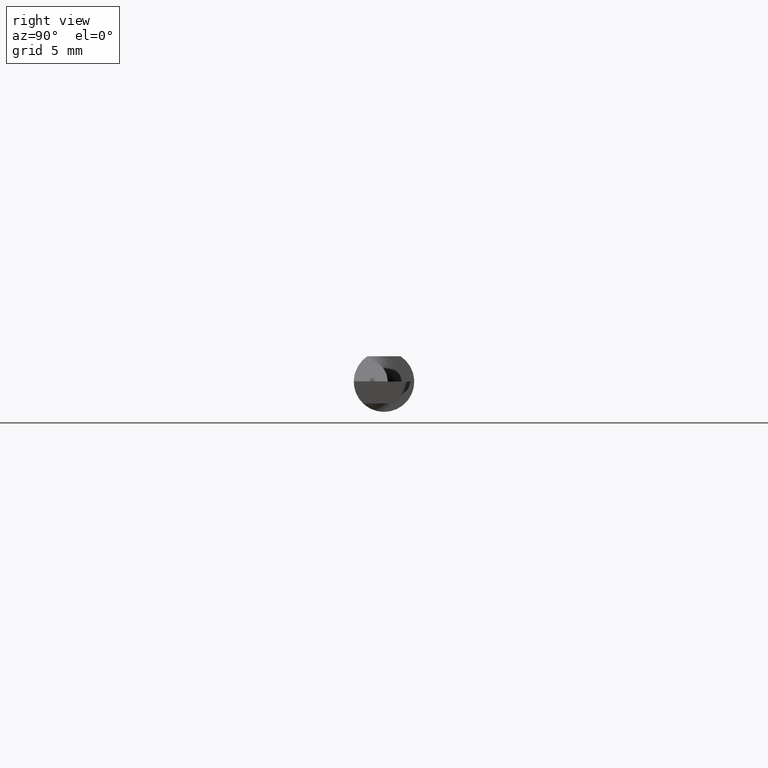
[diagram: clean part render]
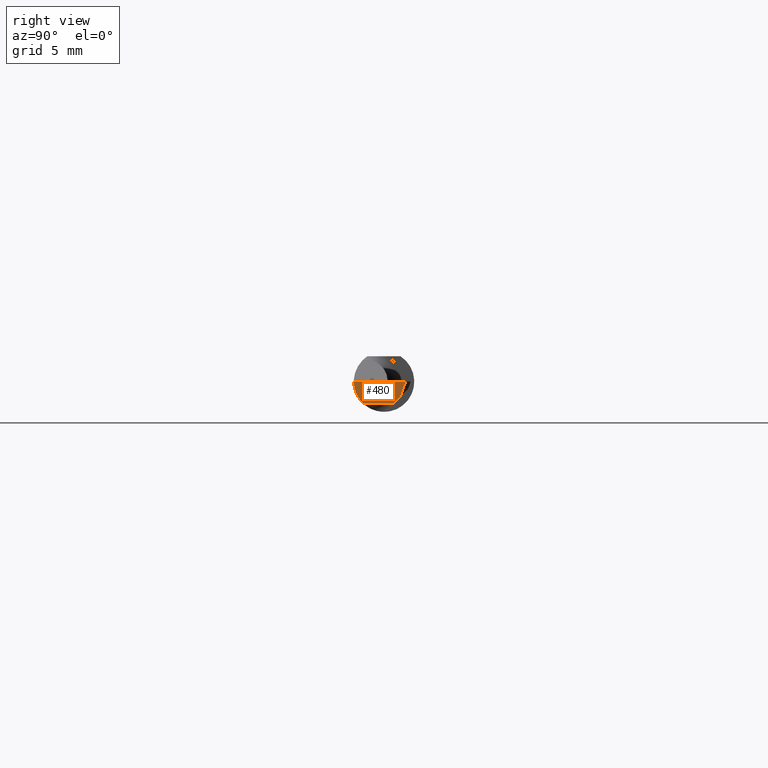
[diagram: same view with one face highlighted and labeled with its STEP entity id]
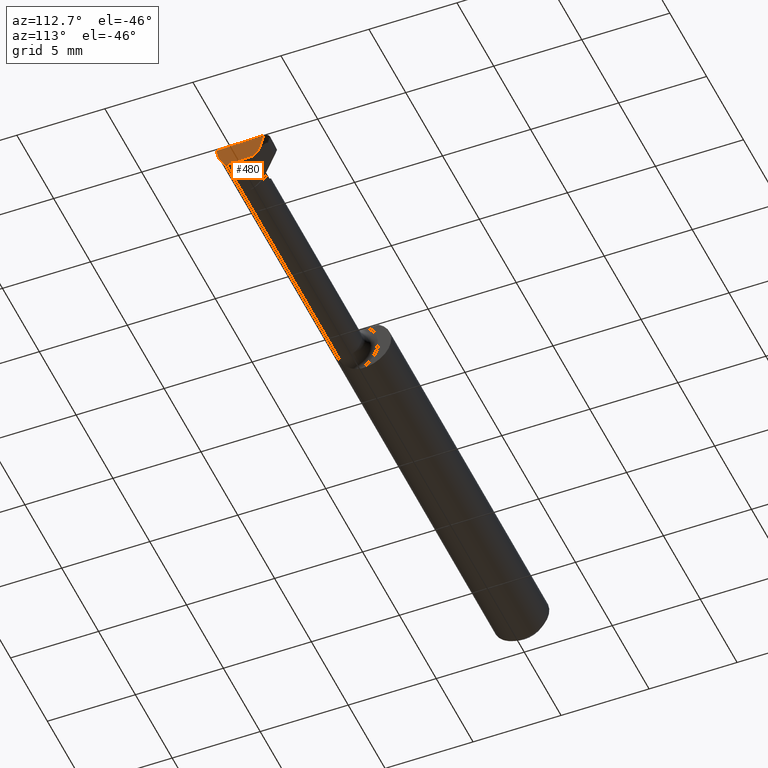
[diagram: same view with one face highlighted and labeled with its STEP entity id]
A machine part, right view. The second image highlights one B-rep face of the part: STEP entity #480.
A second angle (auxiliary view) of the same face is appended — the face is thin or edge-on in the first view.
In plain terms, the highlighted planar face has unit normal (-0.9919, 0.0349, 0.1218).
Its self-contained STEP definition (entity closure, byte-faithful):
#21 = EDGE_LOOP ( 'NONE', ( #639, #83, #530, #56, #252, #608 ) ) ;
#24 = DIRECTION ( 'NONE',  ( 0.1263519090027680480, 0.3433542545449559946, 0.9306680670234870334 ) ) ;
#28 = DIRECTION ( 'NONE',  ( -0.1108231566318821637, -0.7048963575661799652, -0.7005992813613767245 ) ) ;
#41 = CARTESIAN_POINT ( 'NONE',  ( 1.493725782297394389, -0.06234999999999974590, -0.01700082242080195108 ) ) ;
#49 = PLANE ( 'NONE',  #433 ) ;
#52 = CARTESIAN_POINT ( 'NONE',  ( 1.470179879611684282, 0.05664999999999999203, -0.2428653909663854860 ) ) ;
#56 = ORIENTED_EDGE ( 'NONE', *, *, #873, .F. ) ;
#70 = EDGE_CURVE ( 'NONE', #442, #138, #269, .T. ) ;
#72 = CARTESIAN_POINT ( 'NONE',  ( 1.491000998396268429, -0.04360836680053547382, -0.04456268444550840618 ) ) ;
#78 = CARTESIAN_POINT ( 'NONE',  ( 1.491093796476024469, -0.03944460584838484218, -0.04499999999999999833 ) ) ;
#83 = ORIENTED_EDGE ( 'NONE', *, *, #147, .T. ) ;
#85 = EDGE_CURVE ( 'NONE', #293, #326, #486, .T. ) ;
#93 = CARTESIAN_POINT ( 'NONE',  ( 1.495219055447697620, 0.03288246833425534366, -0.03212725622798096037 ) ) ;
#109 = CARTESIAN_POINT ( 'NONE',  ( 1.495813220813313693, -0.06235000000000000264, -2.641722387191573529E-17 ) ) ;
#113 = VERTEX_POINT ( 'NONE', #93 ) ;
#138 = VERTEX_POINT ( 'NONE', #443 ) ;
#147 = EDGE_CURVE ( 'NONE', #113, #326, #652, .T. ) ;
#157 = EDGE_CURVE ( 'NONE', #113, #514, #169, .T. ) ;
#169 = LINE ( 'NONE', #501, #421 ) ;
#178 = CARTESIAN_POINT ( 'NONE',  ( 1.495813220813313693, -0.06235000000000000264, -2.641722387191573529E-17 ) ) ;
#199 = CARTESIAN_POINT ( 'NONE',  ( 1.491000998396268429, -0.04360836680053547382, -0.04456268444550840618 ) ) ;
#222 = CARTESIAN_POINT ( 'NONE',  ( 1.471069375019570913, -0.03274293919889822990, -0.2100061389505829268 ) ) ;
#251 = EDGE_CURVE ( 'NONE', #138, #514, #875, .T. ) ;
#252 = ORIENTED_EDGE ( 'NONE', *, *, #70, .T. ) ;
#269 =( BOUNDED_CURVE ( )  B_SPLINE_CURVE ( 3, ( #72, #904, #78, #286 ),
 .UNSPECIFIED., .F., .T. ) 
 B_SPLINE_CURVE_WITH_KNOTS ( ( 4, 4 ),
 ( 0.1395382827391957181, 0.2790653745353861570 ),
 .UNSPECIFIED. ) 
 CURVE ( )  GEOMETRIC_REPRESENTATION_ITEM ( )  RATIONAL_B_SPLINE_CURVE ( ( 1.000000000000000000, 0.9983783404263124606, 0.9983783404263124606, 1.000000000000000000 ) ) 
 REPRESENTATION_ITEM ( '' )  );
#286 = CARTESIAN_POINT ( 'NONE',  ( 1.491167491032077352, -0.03735000000000000125, -0.04499999999999999833 ) ) ;
#293 = VERTEX_POINT ( 'NONE', #178 ) ;
#326 = VERTEX_POINT ( 'NONE', #832 ) ;
#328 = DIRECTION ( 'NONE',  ( 0.1218693434051339730, 0.000000000000000000, 0.9925461516413236485 ) ) ;
#421 = VECTOR ( 'NONE', #28, 39.37007874015748143 ) ;
#422 = CARTESIAN_POINT ( 'NONE',  ( 1.493182801433054374, 0.01993077049758791922, -0.04499999999999999833 ) ) ;
#433 = AXIS2_PLACEMENT_3D ( 'NONE', #52, #614, #328 ) ;
#442 = VERTEX_POINT ( 'NONE', #199 ) ;
#443 = CARTESIAN_POINT ( 'NONE',  ( 1.491167491032077352, -0.03735000000000000125, -0.04499999999999999833 ) ) ;
#448 = DIRECTION ( 'NONE',  ( 0.03516126301284225319, 0.9993816516143076978, -0.000000000000000000 ) ) ;
#479 = VECTOR ( 'NONE', #783, 39.37007874015747433 ) ;
#480 = ADVANCED_FACE ( 'NONE', ( #666 ), #49, .F. ) ;
#486 = LINE ( 'NONE', #658, #479 ) ;
#501 = CARTESIAN_POINT ( 'NONE',  ( 1.475412681909845203, -0.09309698386455506069, -0.1573387326803897535 ) ) ;
#514 = VERTEX_POINT ( 'NONE', #422 ) ;
#530 = ORIENTED_EDGE ( 'NONE', *, *, #85, .F. ) ;
#581 =( BOUNDED_CURVE ( )  B_SPLINE_CURVE ( 3, ( #810, #884, #41, #109 ),
 .UNSPECIFIED., .F., .T. ) 
 B_SPLINE_CURVE_WITH_KNOTS ( ( 4, 4 ),
 ( 0.4955097310814783329, 1.291730952259495524 ),
 .UNSPECIFIED. ) 
 CURVE ( )  GEOMETRIC_REPRESENTATION_ITEM ( )  RATIONAL_B_SPLINE_CURVE ( ( 1.000000000000000000, 0.9478634083065206051, 0.9478634083065206051, 1.000000000000000000 ) ) 
 REPRESENTATION_ITEM ( '' )  );
#598 = CARTESIAN_POINT ( 'NONE',  ( 1.494444658729153552, 0.05579629183043362944, -0.04499999999999999833 ) ) ;
#608 = ORIENTED_EDGE ( 'NONE', *, *, #251, .T. ) ;
#614 = DIRECTION ( 'NONE',  ( -0.9919415193434454325, 0.03489949670244067020, 0.1217951038939312919 ) ) ;
#627 = VECTOR ( 'NONE', #24, 39.37007874015748143 ) ;
#639 = ORIENTED_EDGE ( 'NONE', *, *, #157, .F. ) ;
#652 = LINE ( 'NONE', #222, #627 ) ;
#658 = CARTESIAN_POINT ( 'NONE',  ( 1.500541969582406931, 0.07205429466916821180, -1.868634782302818344E-17 ) ) ;
#666 = FACE_OUTER_BOUND ( 'NONE', #21, .T. ) ;
#783 = DIRECTION ( 'NONE',  ( 0.03516126301284226707, 0.9993816516143079198, -8.514622150947768447E-19 ) ) ;
#810 = CARTESIAN_POINT ( 'NONE',  ( 1.491000998396268429, -0.04360836680053547382, -0.04456268444550840618 ) ) ;
#832 = CARTESIAN_POINT ( 'NONE',  ( 1.499580804065988371, 0.04473527655191909119, -1.866307231897750198E-17 ) ) ;
#873 = EDGE_CURVE ( 'NONE', #442, #293, #581, .T. ) ;
#875 = LINE ( 'NONE', #598, #879 ) ;
#879 = VECTOR ( 'NONE', #448, 39.37007874015748854 ) ;
#884 = CARTESIAN_POINT ( 'NONE',  ( 1.492033477135110697, -0.05575916527450947013, -0.03267209743609288813 ) ) ;
#904 = CARTESIAN_POINT ( 'NONE',  ( 1.491038208786445773, -0.04153411659032898301, -0.04485399137221370708 ) ) ;